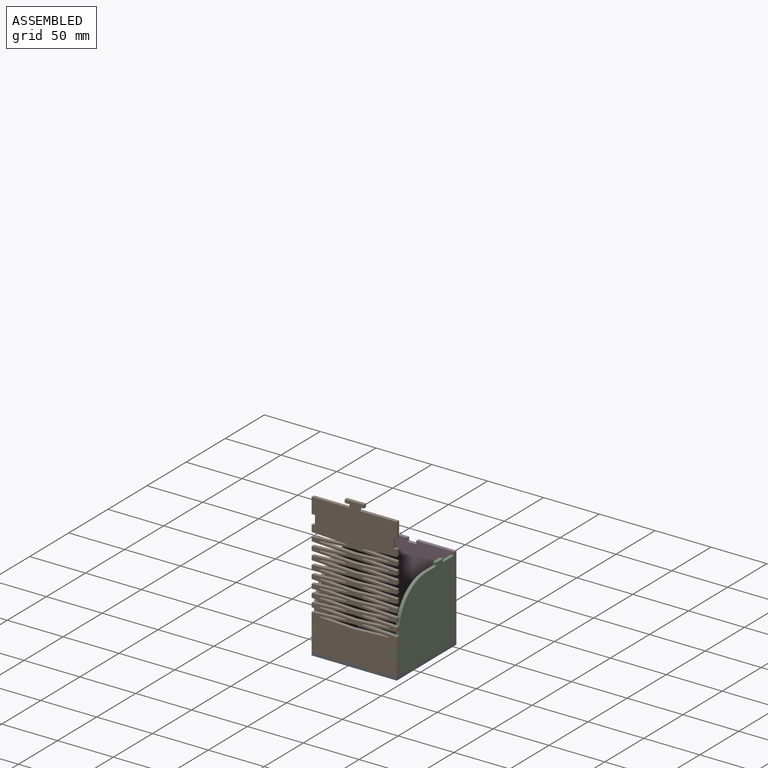
[diagram: assembled view]
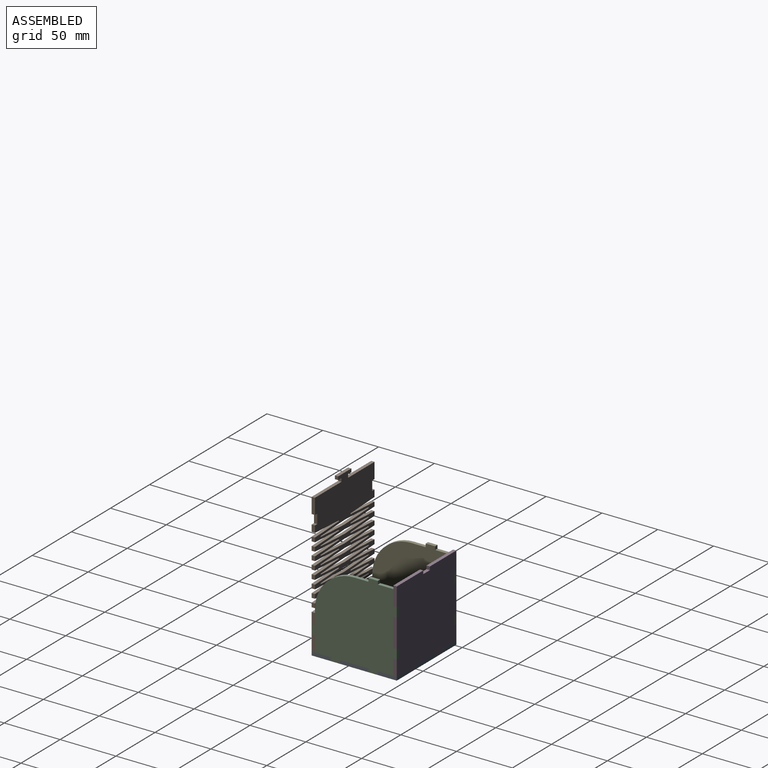
[diagram: assembled view, second angle]
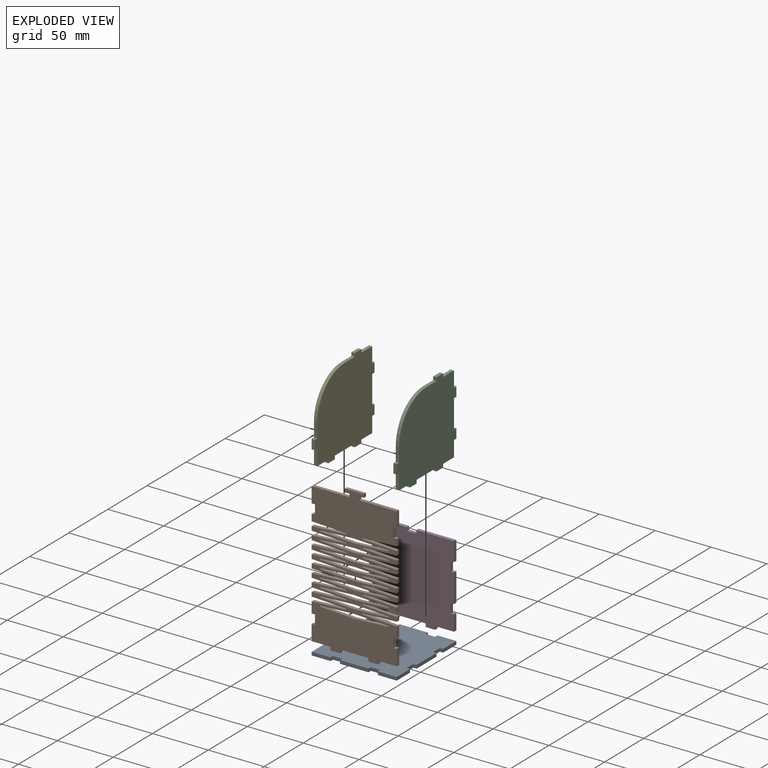
[diagram: exploded view]
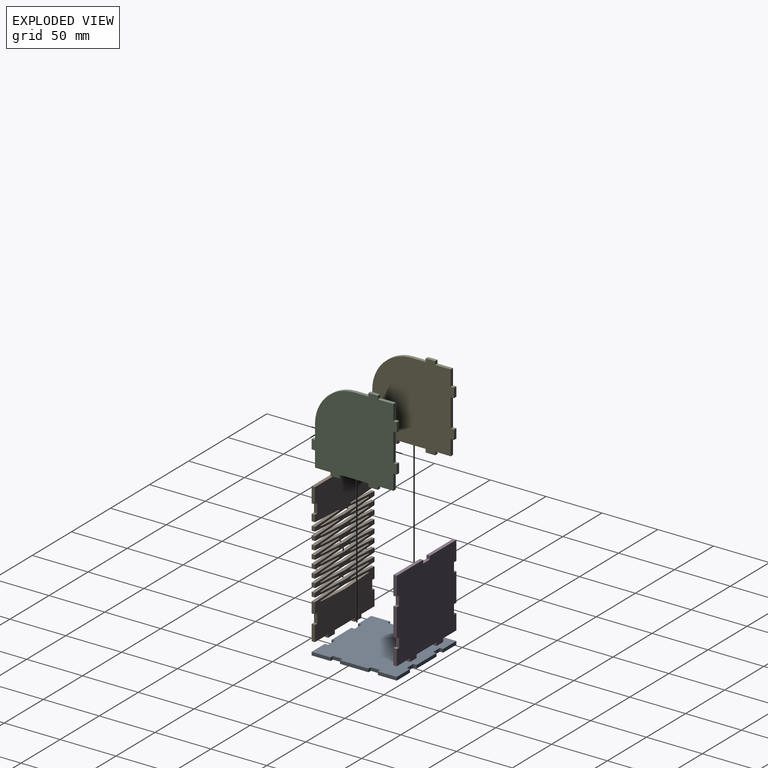
[diagram: exploded view, second angle]
ASSEMBLY  parts=5 mates=4
PART A: 38 faces, bbox 76.2x76.2x3 mm
  f0: plane 25.45x2.97mm, normal (0,-1,0), area 75.6mm2, adj f8,f9,f23,f34
  f1: plane 16.92x2.97mm, normal (0,-1,0), area 50.3mm2, adj f8,f9,f13,f25
  f2: plane 16.92x2.97mm, normal (1,0,0), area 50.3mm2, adj f8,f9,f12,f29
  f3: plane 25.45x2.97mm, normal (1,0,0), area 75.6mm2, adj f8,f9,f20,f31
  f4: plane 25.45x2.97mm, normal (0,1,0), area 75.6mm2, adj f8,f9,f16,f36
  f5: plane 16.92x2.97mm, normal (0,1,0), area 50.3mm2, adj f7,f8,f9,f14
  f6: plane 25.45x2.97mm, normal (-1,0,0), area 75.6mm2, adj f8,f9,f18,f28
  f7: plane 16.92x2.97mm, normal (-1,0,0), area 50.3mm2, adj f5,f8,f9,f17
  f8: plane 76.2x76.2mm, normal (0,0,1), area 5605.4mm2, adj f0,f1,f2,f3,f4,f5,f6,f7
  f9: plane 76.2x76.2mm, normal (0,0,-1), area 5605.4mm2, adj f0,f1,f2,f3,f4,f5,f6,f7
  f10: plane 16.92x2.97mm, normal (0,-1,0), area 50.3mm2, adj f8,f9,f11,f32
  f11: plane 16.92x2.97mm, normal (1,0,0), area 50.3mm2, adj f8,f9,f10,f22
  f12: plane 16.92x2.97mm, normal (0,1,0), area 50.3mm2, adj f2,f8,f9,f35
  f13: plane 16.92x2.97mm, normal (-1,0,0), area 50.3mm2, adj f1,f8,f9,f26
  f14: plane 2.97x2.97mm, normal (1,0,0), area 8.8mm2, adj f5,f8,f9,f15
  f15: plane 8.46x2.97mm, normal (0,1,0), area 25.1mm2, adj f8,f9,f14,f16
  f16: plane 2.97x2.97mm, normal (-1,0,0), area 8.8mm2, adj f4,f8,f9,f15
  f17: plane 2.97x2.97mm, normal (0,-1,0), area 8.8mm2, adj f7,f8,f9,f19
  f18: plane 2.97x2.97mm, normal (0,1,0), area 8.8mm2, adj f6,f8,f9,f19
  f19: plane 8.46x2.97mm, normal (-1,0,0), area 25.1mm2, adj f8,f9,f17,f18
  f20: plane 2.97x2.97mm, normal (0,-1,0), area 8.8mm2, adj f3,f8,f9,f21
  f21: plane 8.46x2.97mm, normal (1,0,0), area 25.1mm2, adj f8,f9,f20,f22
  f22: plane 2.97x2.97mm, normal (0,1,0), area 8.8mm2, adj f8,f9,f11,f21
  f23: plane 2.97x2.97mm, normal (-1,0,0), area 8.8mm2, adj f0,f8,f9,f24
  f24: plane 8.46x2.97mm, normal (0,-1,0), area 25.1mm2, adj f8,f9,f23,f25
  f25: plane 2.97x2.97mm, normal (1,0,0), area 8.8mm2, adj f1,f8,f9,f24
  f26: plane 2.97x2.97mm, normal (0,1,0), area 8.8mm2, adj f8,f9,f13,f27
  f27: plane 8.46x2.97mm, normal (-1,0,0), area 25.1mm2, adj f8,f9,f26,f28
  f28: plane 2.97x2.97mm, normal (0,-1,0), area 8.8mm2, adj f6,f8,f9,f27
  f29: plane 2.97x2.97mm, normal (0,-1,0), area 8.8mm2, adj f2,f8,f9,f30
  f30: plane 8.46x2.97mm, normal (1,0,0), area 25.1mm2, adj f8,f9,f29,f31
  f31: plane 2.97x2.97mm, normal (0,1,0), area 8.8mm2, adj f3,f8,f9,f30
  f32: plane 2.97x2.97mm, normal (-1,0,0), area 8.8mm2, adj f8,f9,f10,f33
  f33: plane 8.46x2.97mm, normal (0,-1,0), area 25.1mm2, adj f8,f9,f32,f34
  f34: plane 2.97x2.97mm, normal (1,0,0), area 8.8mm2, adj f0,f8,f9,f33
  f35: plane 2.97x2.97mm, normal (-1,0,0), area 8.8mm2, adj f8,f9,f12,f37
  f36: plane 2.97x2.97mm, normal (1,0,0), area 8.8mm2, adj f4,f8,f9,f37
  f37: plane 8.46x2.97mm, normal (0,1,0), area 25.1mm2, adj f8,f9,f35,f36
PART B: 164 faces, bbox 76.2x3x134.3 mm
  f0: plane 3.81x2.97mm, normal (1,0,0), area 11.3mm2, adj f4,f17,f114,f115
  f1: plane 3.81x2.97mm, normal (-1,0,0), area 11.3mm2, adj f5,f20,f114,f115
  f2: cylinder r=0.38mm len=2.97mm, axis (0,1,0), area 3.4mm2, adj f3,f4,f114,f115
  f3: plane 30.49x2.97mm, normal (0.05,0,1), area 90.7mm2, adj f2,f112,f114,f115
  f4: plane 30.49x2.97mm, normal (0.05,0,-1), area 90.7mm2, adj f0,f2,f114,f115
  f5: plane 30.49x2.97mm, normal (-0.05,0,-1), area 90.7mm2, adj f1,f7,f114,f115
  f6: plane 30.49x2.97mm, normal (-0.05,0,1), area 90.7mm2, adj f7,f113,f114,f115
  f7: cylinder r=0.38mm len=2.97mm, axis (0,1,0), area 3.4mm2, adj f5,f6,f114,f115
  f8: plane 30.49x2.97mm, normal (-0.05,0,-1), area 90.7mm2, adj f9,f13,f114,f115
  f9: plane 30.49x2.97mm, normal (0.05,0,-1), area 90.7mm2, adj f8,f10,f114,f115
  f10: cylinder r=0.38mm len=2.97mm, axis (0,1,0), area 3.4mm2, adj f9,f11,f114,f115
  f11: plane 30.49x2.97mm, normal (0.05,0,1), area 90.7mm2, adj f10,f12,f114,f115
  f12: plane 30.49x2.97mm, normal (-0.05,0,1), area 90.7mm2, adj f11,f13,f114,f115
  f13: cylinder r=0.38mm len=2.97mm, axis (0,1,0), area 3.4mm2, adj f8,f12,f114,f115
  f14: plane 3.81x2.97mm, normal (1,0,0), area 11.3mm2, adj f18,f31,f114,f115
  f15: plane 3.81x2.97mm, normal (-1,0,0), area 11.3mm2, adj f19,f34,f114,f115
  f16: cylinder r=0.38mm len=2.97mm, axis (0,1,0), area 3.4mm2, adj f17,f18,f114,f115
  f17: plane 30.49x2.97mm, normal (0.05,0,1), area 90.7mm2, adj f0,f16,f114,f115
  f18: plane 30.49x2.97mm, normal (0.05,0,-1), area 90.7mm2, adj f14,f16,f114,f115
  f19: plane 30.49x2.97mm, normal (-0.05,0,-1), area 90.7mm2, adj f15,f21,f114,f115
  f20: plane 30.49x2.97mm, normal (-0.05,0,1), area 90.7mm2, adj f1,f21,f114,f115
  f21: cylinder r=0.38mm len=2.97mm, axis (0,1,0), area 3.4mm2, adj f19,f20,f114,f115
  f22: plane 30.49x2.97mm, normal (-0.05,0,-1), area 90.7mm2, adj f23,f27,f114,f115
  f23: plane 30.49x2.97mm, normal (0.05,0,-1), area 90.7mm2, adj f22,f24,f114,f115
  f24: cylinder r=0.38mm len=2.97mm, axis (0,1,0), area 3.4mm2, adj f23,f25,f114,f115
  f25: plane 30.49x2.97mm, normal (0.05,0,1), area 90.7mm2, adj f24,f26,f114,f115
  f26: plane 30.49x2.97mm, normal (-0.05,0,1), area 90.7mm2, adj f25,f27,f114,f115
  f27: cylinder r=0.38mm len=2.97mm, axis (0,1,0), area 3.4mm2, adj f22,f26,f114,f115
  f28: plane 3.81x2.97mm, normal (1,0,0), area 11.3mm2, adj f32,f45,f114,f115
  f29: plane 3.81x2.97mm, normal (-1,0,0), area 11.3mm2, adj f33,f48,f114,f115
  f30: cylinder r=0.38mm len=2.97mm, axis (0,1,0), area 3.4mm2, adj f31,f32,f114,f115
  f31: plane 30.49x2.97mm, normal (0.05,0,1), area 90.7mm2, adj f14,f30,f114,f115
  f32: plane 30.49x2.97mm, normal (0.05,0,-1), area 90.7mm2, adj f28,f30,f114,f115
  f33: plane 30.49x2.97mm, normal (-0.05,0,-1), area 90.7mm2, adj f29,f35,f114,f115
  f34: plane 30.49x2.97mm, normal (-0.05,0,1), area 90.7mm2, adj f15,f35,f114,f115
  f35: cylinder r=0.38mm len=2.97mm, axis (0,1,0), area 3.4mm2, adj f33,f34,f114,f115
  f36: plane 30.49x2.97mm, normal (-0.05,0,-1), area 90.7mm2, adj f37,f41,f114,f115
  f37: plane 30.49x2.97mm, normal (0.05,0,-1), area 90.7mm2, adj f36,f38,f114,f115
  f38: cylinder r=0.38mm len=2.97mm, axis (0,1,0), area 3.4mm2, adj f37,f39,f114,f115
  f39: plane 30.49x2.97mm, normal (0.05,0,1), area 90.7mm2, adj f38,f40,f114,f115
  f40: plane 30.49x2.97mm, normal (-0.05,0,1), area 90.7mm2, adj f39,f41,f114,f115
  f41: cylinder r=0.38mm len=2.97mm, axis (0,1,0), area 3.4mm2, adj f36,f40,f114,f115
  f42: plane 3.81x2.97mm, normal (1,0,0), area 11.3mm2, adj f46,f59,f114,f115
  f43: plane 3.81x2.97mm, normal (-1,0,0), area 11.3mm2, adj f47,f62,f114,f115
  f44: cylinder r=0.38mm len=2.97mm, axis (0,1,0), area 3.4mm2, adj f45,f46,f114,f115
  f45: plane 30.49x2.97mm, normal (0.05,0,1), area 90.7mm2, adj f28,f44,f114,f115
  f46: plane 30.49x2.97mm, normal (0.05,0,-1), area 90.7mm2, adj f42,f44,f114,f115
  f47: plane 30.49x2.97mm, normal (-0.05,0,-1), area 90.7mm2, adj f43,f49,f114,f115
  f48: plane 30.49x2.97mm, normal (-0.05,0,1), area 90.7mm2, adj f29,f49,f114,f115
  f49: cylinder r=0.38mm len=2.97mm, axis (0,1,0), area 3.4mm2, adj f47,f48,f114,f115
  f50: plane 30.49x2.97mm, normal (-0.05,0,-1), area 90.7mm2, adj f51,f55,f114,f115
  f51: plane 30.49x2.97mm, normal (0.05,0,-1), area 90.7mm2, adj f50,f52,f114,f115
  f52: cylinder r=0.38mm len=2.97mm, axis (0,1,0), area 3.4mm2, adj f51,f53,f114,f115
  f53: plane 30.49x2.97mm, normal (0.05,0,1), area 90.7mm2, adj f52,f54,f114,f115
  f54: plane 30.49x2.97mm, normal (-0.05,0,1), area 90.7mm2, adj f53,f55,f114,f115
  f55: cylinder r=0.38mm len=2.97mm, axis (0,1,0), area 3.4mm2, adj f50,f54,f114,f115
  f56: plane 3.81x2.97mm, normal (1,0,0), area 11.3mm2, adj f60,f73,f114,f115
  f57: plane 3.81x2.97mm, normal (-1,0,0), area 11.3mm2, adj f61,f76,f114,f115
  f58: cylinder r=0.38mm len=2.97mm, axis (0,1,0), area 3.4mm2, adj f59,f60,f114,f115
  f59: plane 30.49x2.97mm, normal (0.05,0,1), area 90.7mm2, adj f42,f58,f114,f115
  f60: plane 30.49x2.97mm, normal (0.05,0,-1), area 90.7mm2, adj f56,f58,f114,f115
  f61: plane 30.49x2.97mm, normal (-0.05,0,-1), area 90.7mm2, adj f57,f63,f114,f115
  f62: plane 30.49x2.97mm, normal (-0.05,0,1), area 90.7mm2, adj f43,f63,f114,f115
  f63: cylinder r=0.38mm len=2.97mm, axis (0,1,0), area 3.4mm2, adj f61,f62,f114,f115
  f64: plane 30.49x2.97mm, normal (-0.05,0,-1), area 90.7mm2, adj f65,f69,f114,f115
  f65: plane 30.49x2.97mm, normal (0.05,0,-1), area 90.7mm2, adj f64,f66,f114,f115
  f66: cylinder r=0.38mm len=2.97mm, axis (0,1,0), area 3.4mm2, adj f65,f67,f114,f115
  f67: plane 30.49x2.97mm, normal (0.05,0,1), area 90.7mm2, adj f66,f68,f114,f115
  f68: plane 30.49x2.97mm, normal (-0.05,0,1), area 90.7mm2, adj f67,f69,f114,f115
  f69: cylinder r=0.38mm len=2.97mm, axis (0,1,0), area 3.4mm2, adj f64,f68,f114,f115
  f70: plane 3.81x2.97mm, normal (1,0,0), area 11.3mm2, adj f74,f87,f114,f115
  f71: plane 3.81x2.97mm, normal (-1,0,0), area 11.3mm2, adj f75,f90,f114,f115
  f72: cylinder r=0.38mm len=2.97mm, axis (0,1,0), area 3.4mm2, adj f73,f74,f114,f115
  f73: plane 30.49x2.97mm, normal (0.05,0,1), area 90.7mm2, adj f56,f72,f114,f115
  f74: plane 30.49x2.97mm, normal (0.05,0,-1), area 90.7mm2, adj f70,f72,f114,f115
  f75: plane 30.49x2.97mm, normal (-0.05,0,-1), area 90.7mm2, adj f71,f77,f114,f115
  f76: plane 30.49x2.97mm, normal (-0.05,0,1), area 90.7mm2, adj f57,f77,f114,f115
  f77: cylinder r=0.38mm len=2.97mm, axis (0,1,0), area 3.4mm2, adj f75,f76,f114,f115
  f78: plane 30.49x2.97mm, normal (-0.05,0,-1), area 90.7mm2, adj f79,f83,f114,f115
  f79: plane 30.49x2.97mm, normal (0.05,0,-1), area 90.7mm2, adj f78,f80,f114,f115
  f80: cylinder r=0.38mm len=2.97mm, axis (0,1,0), area 3.4mm2, adj f79,f81,f114,f115
  f81: plane 30.49x2.97mm, normal (0.05,0,1), area 90.7mm2, adj f80,f82,f114,f115
  f82: plane 30.49x2.97mm, normal (-0.05,0,1), area 90.7mm2, adj f81,f83,f114,f115
  f83: cylinder r=0.38mm len=2.97mm, axis (0,1,0), area 3.4mm2, adj f78,f82,f114,f115
  f84: plane 3.81x2.97mm, normal (1,0,0), area 11.3mm2, adj f88,f101,f114,f115
  f85: plane 3.81x2.97mm, normal (-1,0,0), area 11.3mm2, adj f89,f104,f114,f115
  f86: cylinder r=0.38mm len=2.97mm, axis (0,1,0), area 3.4mm2, adj f87,f88,f114,f115
  f87: plane 30.49x2.97mm, normal (0.05,0,1), area 90.7mm2, adj f70,f86,f114,f115
  f88: plane 30.49x2.97mm, normal (0.05,0,-1), area 90.7mm2, adj f84,f86,f114,f115
  f89: plane 30.49x2.97mm, normal (-0.05,0,-1), area 90.7mm2, adj f85,f91,f114,f115
  f90: plane 30.49x2.97mm, normal (-0.05,0,1), area 90.7mm2, adj f71,f91,f114,f115
  f91: cylinder r=0.38mm len=2.97mm, axis (0,1,0), area 3.4mm2, adj f89,f90,f114,f115
  f92: plane 30.49x2.97mm, normal (-0.05,0,-1), area 90.7mm2, adj f93,f97,f114,f115
  f93: plane 30.49x2.97mm, normal (0.05,0,-1), area 90.7mm2, adj f92,f94,f114,f115
  f94: cylinder r=0.38mm len=2.97mm, axis (0,1,0), area 3.4mm2, adj f93,f95,f114,f115
  f95: plane 30.49x2.97mm, normal (0.05,0,1), area 90.7mm2, adj f94,f96,f114,f115
  f96: plane 30.49x2.97mm, normal (-0.05,0,1), area 90.7mm2, adj f95,f97,f114,f115
  f97: cylinder r=0.38mm len=2.97mm, axis (0,1,0), area 3.4mm2, adj f92,f96,f114,f115
  f98: plane 3.81x2.97mm, normal (1,0,0), area 11.3mm2, adj f102,f114,f115,f162
  f99: plane 3.81x2.97mm, normal (-1,0,0), area 11.3mm2, adj f103,f114,f115,f159
  f100: cylinder r=0.38mm len=2.97mm, axis (0,1,0), area 3.4mm2, adj f101,f102,f114,f115
  f101: plane 30.49x2.97mm, normal (0.05,0,1), area 90.7mm2, adj f84,f100,f114,f115
  f102: plane 30.49x2.97mm, normal (0.05,0,-1), area 90.7mm2, adj f98,f100,f114,f115
  f103: plane 30.49x2.97mm, normal (-0.05,0,-1), area 90.7mm2, adj f99,f105,f114,f115
  f104: plane 30.49x2.97mm, normal (-0.05,0,1), area 90.7mm2, adj f85,f105,f114,f115
  f105: cylinder r=0.38mm len=2.97mm, axis (0,1,0), area 3.4mm2, adj f103,f104,f114,f115
  f106: plane 30.49x2.97mm, normal (-0.05,0,-1), area 90.7mm2, adj f107,f111,f114,f115
  f107: plane 30.49x2.97mm, normal (0.05,0,-1), area 90.7mm2, adj f106,f108,f114,f115
  f108: cylinder r=0.38mm len=2.97mm, axis (0,1,0), area 3.4mm2, adj f107,f109,f114,f115
  f109: plane 30.49x2.97mm, normal (0.05,0,1), area 90.7mm2, adj f108,f110,f114,f115
  f110: plane 30.49x2.97mm, normal (-0.05,0,1), area 90.7mm2, adj f109,f111,f114,f115
  f111: cylinder r=0.38mm len=2.97mm, axis (0,1,0), area 3.4mm2, adj f106,f110,f114,f115
  f112: plane 9.83x2.97mm, normal (1,0,0), area 29.2mm2, adj f3,f114,f115,f131
  f113: plane 9.83x2.97mm, normal (-1,0,0), area 29.2mm2, adj f6,f114,f115,f135
  f114: plane 134.34x76.2mm, normal (0,-1,0), area 7066.2mm2, adj f0,f1,f2,f3,f4,f5,f6,f7
  f115: plane 134.34x76.2mm, normal (0,1,0), area 7066.2mm2, adj f0,f1,f2,f3,f4,f5,f6,f7
  f116: plane 33.87x2.97mm, normal (0,0,1), area 100.7mm2, adj f114,f115,f122,f146
  f117: plane 25.45x2.97mm, normal (0,0,-1), area 75.6mm2, adj f114,f115,f141,f142
  f118: plane 16.92x2.97mm, normal (0,0,-1), area 50.3mm2, adj f114,f115,f126,f139
  f119: plane 13.94x2.97mm, normal (1,0,0), area 41.4mm2, adj f114,f115,f125,f137
  f120: plane 6.02x2.97mm, normal (1,0,0), area 17.9mm2, adj f114,f115,f136,f163
  f121: plane 6.02x2.97mm, normal (-1,0,0), area 17.9mm2, adj f114,f115,f127,f158
  f122: plane 13.94x2.97mm, normal (-1,0,0), area 41.4mm2, adj f114,f115,f116,f129
  f123: plane 16.92x2.97mm, normal (0,0,-1), area 50.3mm2, adj f114,f115,f124,f144
  f124: plane 13.94x2.97mm, normal (1,0,0), area 41.4mm2, adj f114,f115,f123,f130
  f125: plane 33.87x2.97mm, normal (0,0,1), area 100.7mm2, adj f114,f115,f119,f147
  f126: plane 13.94x2.97mm, normal (-1,0,0), area 41.4mm2, adj f114,f115,f118,f133
  f127: plane 2.97x2.97mm, normal (0,0,1), area 8.8mm2, adj f114,f115,f121,f128
  f128: plane 8.46x2.97mm, normal (-1,0,0), area 25.1mm2, adj f114,f115,f127,f129
  f129: plane 2.97x2.97mm, normal (0,0,-1), area 8.8mm2, adj f114,f115,f122,f128
  f130: plane 2.97x2.97mm, normal (0,0,1), area 8.8mm2, adj f114,f115,f124,f132
  f131: plane 2.97x2.97mm, normal (0,0,-1), area 8.8mm2, adj f112,f114,f115,f132
  f132: plane 8.46x2.97mm, normal (1,0,0), area 25.1mm2, adj f114,f115,f130,f131
  f133: plane 2.97x2.97mm, normal (0,0,1), area 8.8mm2, adj f114,f115,f126,f134
  f134: plane 8.46x2.97mm, normal (-1,0,0), area 25.1mm2, adj f114,f115,f133,f135
  f135: plane 2.97x2.97mm, normal (0,0,-1), area 8.8mm2, adj f113,f114,f115,f134
  f136: plane 2.97x2.97mm, normal (0,0,1), area 8.8mm2, adj f114,f115,f120,f138
  f137: plane 2.97x2.97mm, normal (0,0,-1), area 8.8mm2, adj f114,f115,f119,f138
  f138: plane 8.46x2.97mm, normal (1,0,0), area 25.1mm2, adj f114,f115,f136,f137
  f139: plane 2.97x2.97mm, normal (-1,0,0), area 8.8mm2, adj f114,f115,f118,f140
  f140: plane 8.46x2.97mm, normal (0,0,-1), area 25.1mm2, adj f114,f115,f139,f141
  f141: plane 2.97x2.97mm, normal (1,0,0), area 8.8mm2, adj f114,f115,f117,f140
  f142: plane 2.97x2.97mm, normal (-1,0,0), area 8.8mm2, adj f114,f115,f117,f143
  f143: plane 8.46x2.97mm, normal (0,0,-1), area 25.1mm2, adj f114,f115,f142,f144
  f144: plane 2.97x2.97mm, normal (1,0,0), area 8.8mm2, adj f114,f115,f123,f143
  f145: plane 4.23x2.97mm, normal (0,0,-1), area 12.6mm2, adj f114,f115,f146,f151
  f146: plane 2.97x2.97mm, normal (-1,0,0), area 8.8mm2, adj f114,f115,f116,f145
  f147: plane 2.97x2.97mm, normal (1,0,0), area 8.8mm2, adj f114,f115,f125,f148
  f148: plane 4.23x2.97mm, normal (0,0,-1), area 12.6mm2, adj f114,f115,f147,f149
  f149: plane 2.97x2.97mm, normal (1,0,0), area 8.8mm2, adj f114,f115,f148,f150
  f150: plane 16.92x2.97mm, normal (0,0,1), area 50.3mm2, adj f114,f115,f149,f151
  f151: plane 2.97x2.97mm, normal (-1,0,0), area 8.8mm2, adj f114,f115,f145,f150
  f152: plane 30.49x2.97mm, normal (-0.05,0,-1), area 90.7mm2, adj f114,f115,f153,f157
  f153: plane 30.49x2.97mm, normal (0.05,0,-1), area 90.7mm2, adj f114,f115,f152,f154
  f154: cylinder r=0.38mm len=2.97mm, axis (0,1,0), area 3.4mm2, adj f114,f115,f153,f155
  f155: plane 30.49x2.97mm, normal (0.05,0,1), area 90.7mm2, adj f114,f115,f154,f156
  f156: plane 30.49x2.97mm, normal (-0.05,0,1), area 90.7mm2, adj f114,f115,f155,f157
  f157: cylinder r=0.38mm len=2.97mm, axis (0,1,0), area 3.4mm2, adj f114,f115,f152,f156
  f158: plane 30.49x2.97mm, normal (-0.05,0,-1), area 90.7mm2, adj f114,f115,f121,f160
  f159: plane 30.49x2.97mm, normal (-0.05,0,1), area 90.7mm2, adj f99,f114,f115,f160
  f160: cylinder r=0.38mm len=2.97mm, axis (0,1,0), area 3.4mm2, adj f114,f115,f158,f159
  f161: cylinder r=0.38mm len=2.97mm, axis (0,1,0), area 3.4mm2, adj f114,f115,f162,f163
  f162: plane 30.49x2.97mm, normal (0.05,0,1), area 90.7mm2, adj f98,f114,f115,f161
  f163: plane 30.49x2.97mm, normal (0.05,0,-1), area 90.7mm2, adj f114,f115,f120,f161
PART C: 31 faces, bbox 76.2x76.2x3 mm
  f0: plane 12.73x2.97mm, normal (-1,0,0), area 37.8mm2, adj f9,f11,f12,f30
  f1: plane 13.94x2.97mm, normal (0,-1,0), area 41.4mm2, adj f8,f11,f12,f27
  f2: plane 13.94x2.97mm, normal (0,1,0), area 41.4mm2, adj f6,f11,f12,f23
  f3: plane 25.45x2.97mm, normal (1,0,0), area 75.6mm2, adj f11,f12,f15,f20
  f4: plane 25.45x2.97mm, normal (0,-1,0), area 75.6mm2, adj f11,f12,f17,f25
  f5: plane 13.94x2.97mm, normal (1,0,0), area 41.4mm2, adj f7,f11,f12,f14
  f6: plane 13.94x2.97mm, normal (1,0,0), area 41.4mm2, adj f2,f11,f12,f21
  f7: plane 13.94x2.97mm, normal (0,-1,0), area 41.4mm2, adj f5,f11,f12,f18
  f8: plane 13.94x2.97mm, normal (-1,0,0), area 41.4mm2, adj f1,f11,f12,f28
  f9: cylinder r=35.13mm len=35.13mm, axis (0,0,-1), area 164mm2, adj f0,f10,f11,f12
  f10: plane 12.73x2.97mm, normal (0,1,0), area 37.8mm2, adj f9,f11,f12,f24
  f11: plane 76.2x76.2mm, normal (0,0,1), area 4822mm2, adj f0,f1,f2,f3,f4,f5,f6,f7
  f12: plane 76.2x76.2mm, normal (0,0,-1), area 4822mm2, adj f0,f1,f2,f3,f4,f5,f6,f7
  f13: plane 8.46x2.97mm, normal (1,0,0), area 25.1mm2, adj f11,f12,f14,f15
  f14: plane 2.97x2.97mm, normal (0,-1,0), area 8.8mm2, adj f5,f11,f12,f13
  f15: plane 2.97x2.97mm, normal (0,1,0), area 8.8mm2, adj f3,f11,f12,f13
  f16: plane 8.46x2.97mm, normal (0,-1,0), area 25.1mm2, adj f11,f12,f17,f18
  f17: plane 2.97x2.97mm, normal (-1,0,0), area 8.8mm2, adj f4,f11,f12,f16
  f18: plane 2.97x2.97mm, normal (1,0,0), area 8.8mm2, adj f7,f11,f12,f16
  f19: plane 8.46x2.97mm, normal (1,0,0), area 25.1mm2, adj f11,f12,f20,f21
  f20: plane 2.97x2.97mm, normal (0,-1,0), area 8.8mm2, adj f3,f11,f12,f19
  f21: plane 2.97x2.97mm, normal (0,1,0), area 8.8mm2, adj f6,f11,f12,f19
  f22: plane 8.46x2.97mm, normal (0,1,0), area 25.1mm2, adj f11,f12,f23,f24
  f23: plane 2.97x2.97mm, normal (1,0,0), area 8.8mm2, adj f2,f11,f12,f22
  f24: plane 2.97x2.97mm, normal (-1,0,0), area 8.8mm2, adj f10,f11,f12,f22
  f25: plane 2.97x2.97mm, normal (1,0,0), area 8.8mm2, adj f4,f11,f12,f26
  f26: plane 8.46x2.97mm, normal (0,-1,0), area 25.1mm2, adj f11,f12,f25,f27
  f27: plane 2.97x2.97mm, normal (-1,0,0), area 8.8mm2, adj f1,f11,f12,f26
  f28: plane 2.97x2.97mm, normal (0,-1,0), area 8.8mm2, adj f8,f11,f12,f29
  f29: plane 8.46x2.97mm, normal (-1,0,0), area 25.1mm2, adj f11,f12,f28,f30
  f30: plane 2.97x2.97mm, normal (0,1,0), area 8.8mm2, adj f0,f11,f12,f29
PART D: 34 faces, bbox 76.2x76.2x3 mm
  f0: plane 25.45x2.97mm, normal (1,0,0), area 75.6mm2, adj f5,f6,f27,f29
  f1: plane 13.94x2.97mm, normal (1,0,0), area 41.4mm2, adj f5,f6,f9,f26
  f2: plane 33.87x2.97mm, normal (0,1,0), area 100.7mm2, adj f5,f6,f10,f23
  f3: plane 25.45x2.97mm, normal (-1,0,0), area 75.6mm2, adj f5,f6,f21,f31
  f4: plane 13.94x2.97mm, normal (-1,0,0), area 41.4mm2, adj f5,f6,f7,f19
  f5: plane 76.2x76.2mm, normal (0,0,1), area 5504.6mm2, adj f0,f1,f2,f3,f4,f7,f8,f9
  f6: plane 76.2x76.2mm, normal (0,0,-1), area 5504.6mm2, adj f0,f1,f2,f3,f4,f7,f8,f9
  f7: plane 16.92x2.97mm, normal (0,-1,0), area 50.3mm2, adj f4,f5,f6,f18
  f8: plane 25.45x2.97mm, normal (0,-1,0), area 75.6mm2, adj f5,f6,f15,f17
  f9: plane 16.92x2.97mm, normal (0,-1,0), area 50.3mm2, adj f1,f5,f6,f14
  f10: plane 16.92x2.97mm, normal (1,0,0), area 50.3mm2, adj f2,f5,f6,f30
  f11: plane 33.87x2.97mm, normal (0,1,0), area 100.7mm2, adj f5,f6,f12,f24
  f12: plane 16.92x2.97mm, normal (-1,0,0), area 50.3mm2, adj f5,f6,f11,f33
  f13: plane 8.46x2.97mm, normal (0,-1,0), area 25.1mm2, adj f5,f6,f14,f15
  f14: plane 2.97x2.97mm, normal (1,0,0), area 8.8mm2, adj f5,f6,f9,f13
  f15: plane 2.97x2.97mm, normal (-1,0,0), area 8.8mm2, adj f5,f6,f8,f13
  f16: plane 8.46x2.97mm, normal (0,-1,0), area 25.1mm2, adj f5,f6,f17,f18
  f17: plane 2.97x2.97mm, normal (1,0,0), area 8.8mm2, adj f5,f6,f8,f16
  f18: plane 2.97x2.97mm, normal (-1,0,0), area 8.8mm2, adj f5,f6,f7,f16
  f19: plane 2.97x2.97mm, normal (0,1,0), area 8.8mm2, adj f4,f5,f6,f20
  f20: plane 8.46x2.97mm, normal (-1,0,0), area 25.1mm2, adj f5,f6,f19,f21
  f21: plane 2.97x2.97mm, normal (0,-1,0), area 8.8mm2, adj f3,f5,f6,f20
  f22: plane 8.46x2.97mm, normal (0,1,0), area 25.1mm2, adj f5,f6,f23,f24
  f23: plane 2.97x2.97mm, normal (-1,0,0), area 8.8mm2, adj f2,f5,f6,f22
  f24: plane 2.97x2.97mm, normal (1,0,0), area 8.8mm2, adj f5,f6,f11,f22
  f25: plane 8.46x2.97mm, normal (1,0,0), area 25.1mm2, adj f5,f6,f26,f27
  f26: plane 2.97x2.97mm, normal (0,1,0), area 8.8mm2, adj f1,f5,f6,f25
  f27: plane 2.97x2.97mm, normal (0,-1,0), area 8.8mm2, adj f0,f5,f6,f25
  f28: plane 8.46x2.97mm, normal (1,0,0), area 25.1mm2, adj f5,f6,f29,f30
  f29: plane 2.97x2.97mm, normal (0,1,0), area 8.8mm2, adj f0,f5,f6,f28
  f30: plane 2.97x2.97mm, normal (0,-1,0), area 8.8mm2, adj f5,f6,f10,f28
  f31: plane 2.97x2.97mm, normal (0,1,0), area 8.8mm2, adj f3,f5,f6,f32
  f32: plane 8.46x2.97mm, normal (-1,0,0), area 25.1mm2, adj f5,f6,f31,f33
  f33: plane 2.97x2.97mm, normal (0,-1,0), area 8.8mm2, adj f5,f6,f12,f32
PART E: 31 faces, bbox 76.2x76.2x3 mm
  f0: plane 12.73x2.97mm, normal (1,0,0), area 37.8mm2, adj f9,f11,f12,f30
  f1: plane 13.94x2.97mm, normal (0,-1,0), area 41.4mm2, adj f8,f11,f12,f27
  f2: plane 13.94x2.97mm, normal (0,1,0), area 41.4mm2, adj f6,f11,f12,f23
  f3: plane 25.45x2.97mm, normal (-1,0,0), area 75.6mm2, adj f11,f12,f15,f20
  f4: plane 25.45x2.97mm, normal (0,-1,0), area 75.6mm2, adj f11,f12,f17,f25
  f5: plane 13.94x2.97mm, normal (-1,0,0), area 41.4mm2, adj f7,f11,f12,f14
  f6: plane 13.94x2.97mm, normal (-1,0,0), area 41.4mm2, adj f2,f11,f12,f21
  f7: plane 13.94x2.97mm, normal (0,-1,0), area 41.4mm2, adj f5,f11,f12,f18
  f8: plane 13.94x2.97mm, normal (1,0,0), area 41.4mm2, adj f1,f11,f12,f28
  f9: cylinder r=35.13mm len=35.13mm, axis (0,0,-1), area 164mm2, adj f0,f10,f11,f12
  f10: plane 12.73x2.97mm, normal (0,1,0), area 37.8mm2, adj f9,f11,f12,f24
  f11: plane 76.2x76.2mm, normal (0,0,1), area 4822mm2, adj f0,f1,f2,f3,f4,f5,f6,f7
  f12: plane 76.2x76.2mm, normal (0,0,-1), area 4822mm2, adj f0,f1,f2,f3,f4,f5,f6,f7
  f13: plane 8.46x2.97mm, normal (-1,0,0), area 25.1mm2, adj f11,f12,f14,f15
  f14: plane 2.97x2.97mm, normal (0,-1,0), area 8.8mm2, adj f5,f11,f12,f13
  f15: plane 2.97x2.97mm, normal (0,1,0), area 8.8mm2, adj f3,f11,f12,f13
  f16: plane 8.46x2.97mm, normal (0,-1,0), area 25.1mm2, adj f11,f12,f17,f18
  f17: plane 2.97x2.97mm, normal (1,0,0), area 8.8mm2, adj f4,f11,f12,f16
  f18: plane 2.97x2.97mm, normal (-1,0,0), area 8.8mm2, adj f7,f11,f12,f16
  f19: plane 8.46x2.97mm, normal (-1,0,0), area 25.1mm2, adj f11,f12,f20,f21
  f20: plane 2.97x2.97mm, normal (0,-1,0), area 8.8mm2, adj f3,f11,f12,f19
  f21: plane 2.97x2.97mm, normal (0,1,0), area 8.8mm2, adj f6,f11,f12,f19
  f22: plane 8.46x2.97mm, normal (0,1,0), area 25.1mm2, adj f11,f12,f23,f24
  f23: plane 2.97x2.97mm, normal (-1,0,0), area 8.8mm2, adj f2,f11,f12,f22
  f24: plane 2.97x2.97mm, normal (1,0,0), area 8.8mm2, adj f10,f11,f12,f22
  f25: plane 2.97x2.97mm, normal (-1,0,0), area 8.8mm2, adj f4,f11,f12,f26
  f26: plane 8.46x2.97mm, normal (0,-1,0), area 25.1mm2, adj f11,f12,f25,f27
  f27: plane 2.97x2.97mm, normal (1,0,0), area 8.8mm2, adj f1,f11,f12,f26
  f28: plane 2.97x2.97mm, normal (0,-1,0), area 8.8mm2, adj f8,f11,f12,f29
  f29: plane 8.46x2.97mm, normal (1,0,0), area 25.1mm2, adj f11,f12,f28,f30
  f30: plane 2.97x2.97mm, normal (0,1,0), area 8.8mm2, adj f0,f11,f12,f29
PLACE A t=(46,1.1,-3.18)mm
PLACE B t=(1.55,-34.03,62.51)mm
PLACE C rot(axis=(0.58,0.58,0.58),120deg) t=(36.68,-40.38,34.92)mm
PLACE D rot(axis=(1,0,0),90deg) t=(-42.9,39.2,34.92)mm
PLACE E rot(axis=(0.58,-0.58,-0.58),120deg) t=(-33.57,-40.38,34.92)mm
MATE fastened A.f8 <-> E.f4  axis (0,0,1) through (-36.55,1.1,-0.21)mm
MATE fastened D.f8 <-> A.f8  axis (0,0,1) through (1.55,39.2,-0.21)mm
MATE fastened A.f8 <-> C.f4  axis (0,0,1) through (39.65,1.1,-0.21)mm
MATE fastened B.f117 <-> A.f8  axis (0,0,1) through (1.55,-37,-0.21)mm
